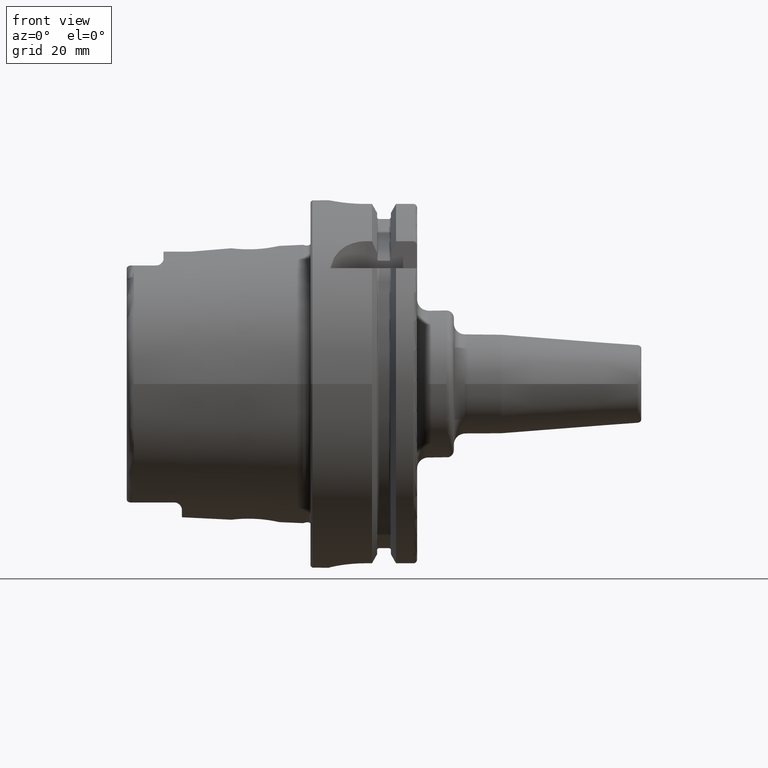
[diagram: clean part render]
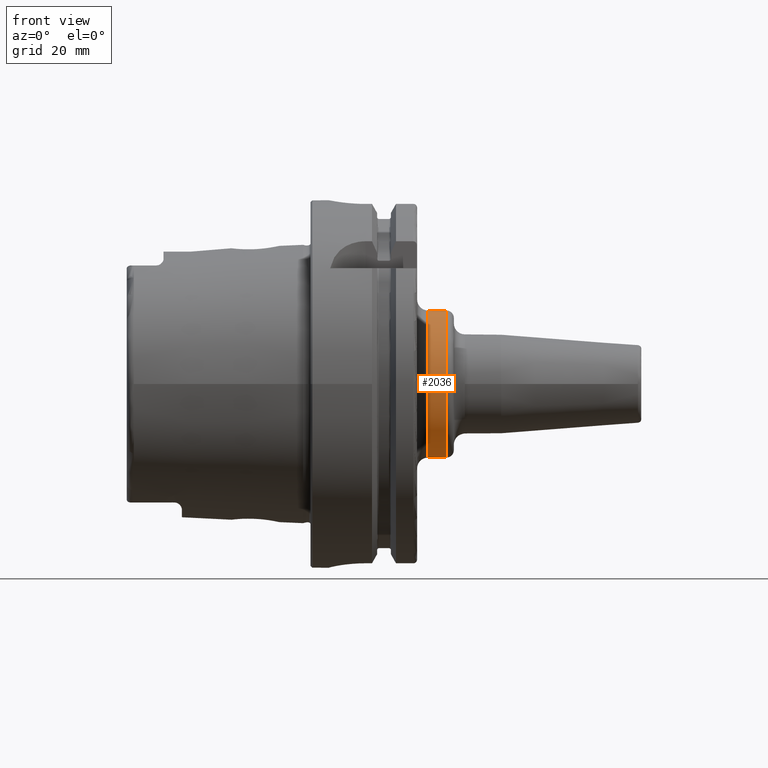
[diagram: same view with one face highlighted and labeled with its STEP entity id]
A machine part, front view. The second image highlights one B-rep face of the part: STEP entity #2036.
In plain terms, the highlighted cylindrical surface (bore or boss wall) has radius 20 mm, axis along (1, 0, 0).
Its self-contained STEP definition (entity closure, byte-faithful):
#177=CYLINDRICAL_SURFACE('',#2197,20.);
#222=FACE_OUTER_BOUND('',#349,.T.);
#349=EDGE_LOOP('',(#1397,#1398,#1399,#1400,#1401,#1402));
#478=LINE('',#3137,#586);
#586=VECTOR('',#2499,20.);
#699=CIRCLE('',#2193,20.);
#700=CIRCLE('',#2194,20.);
#702=CIRCLE('',#2198,20.);
#703=CIRCLE('',#2199,20.);
#839=VERTEX_POINT('',#3127);
#840=VERTEX_POINT('',#3129);
#842=VERTEX_POINT('',#3136);
#843=VERTEX_POINT('',#3138);
#1055=EDGE_CURVE('',#839,#840,#699,.T.);
#1056=EDGE_CURVE('',#840,#839,#700,.T.);
#1058=EDGE_CURVE('',#840,#842,#478,.T.);
#1059=EDGE_CURVE('',#843,#842,#702,.T.);
#1060=EDGE_CURVE('',#842,#843,#703,.T.);
#1397=ORIENTED_EDGE('',*,*,#1056,.F.);
#1398=ORIENTED_EDGE('',*,*,#1058,.T.);
#1399=ORIENTED_EDGE('',*,*,#1059,.F.);
#1400=ORIENTED_EDGE('',*,*,#1060,.F.);
#1401=ORIENTED_EDGE('',*,*,#1058,.F.);
#1402=ORIENTED_EDGE('',*,*,#1055,.F.);
#2036=ADVANCED_FACE('',(#222),#177,.T.);
#2193=AXIS2_PLACEMENT_3D('',#3130,#2489,#2490);
#2194=AXIS2_PLACEMENT_3D('',#3131,#2491,#2492);
#2197=AXIS2_PLACEMENT_3D('',#3135,#2497,#2498);
#2198=AXIS2_PLACEMENT_3D('',#3139,#2500,#2501);
#2199=AXIS2_PLACEMENT_3D('',#3140,#2502,#2503);
#2489=DIRECTION('center_axis',(1.,0.,0.));
#2490=DIRECTION('ref_axis',(0.,-1.,1.83697019872103E-16));
#2491=DIRECTION('center_axis',(1.,0.,0.));
#2492=DIRECTION('ref_axis',(0.,-1.,1.83697019872103E-16));
#2497=DIRECTION('center_axis',(1.,0.,0.));
#2498=DIRECTION('ref_axis',(0.,1.,0.));
#2499=DIRECTION('',(-1.,0.,0.));
#2500=DIRECTION('center_axis',(-1.,0.,0.));
#2501=DIRECTION('ref_axis',(0.,-1.,-1.22464679914735E-16));
#2502=DIRECTION('center_axis',(-1.,0.,0.));
#2503=DIRECTION('ref_axis',(0.,-1.,-1.22464679914735E-16));
#3127=CARTESIAN_POINT('',(37.,-2.44929359829471E-15,20.));
#3129=CARTESIAN_POINT('',(37.,-20.,-2.44929359829471E-15));
#3130=CARTESIAN_POINT('Origin',(37.,0.,0.));
#3131=CARTESIAN_POINT('Origin',(37.,0.,0.));
#3135=CARTESIAN_POINT('Origin',(34.,0.,0.));
#3136=CARTESIAN_POINT('',(32.,-20.,-2.44929359829471E-15));
#3137=CARTESIAN_POINT('',(34.,-20.,-2.44929359829471E-15));
#3138=CARTESIAN_POINT('',(32.,-2.44929359829471E-15,-20.));
#3139=CARTESIAN_POINT('Origin',(32.,0.,0.));
#3140=CARTESIAN_POINT('Origin',(32.,0.,0.));